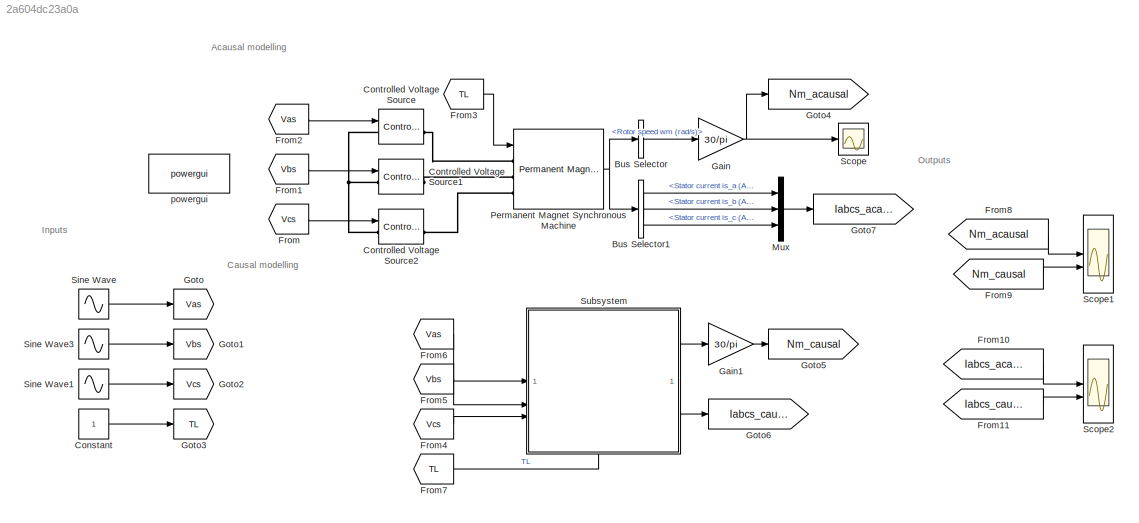
MODEL slx_2a604dc23a0a
KIND model
CONFIG AbsTol = auto
CONFIG EnableMultiTasking = off
CONFIG FixedStep = auto
CONFIG MaxStep = .0001
CONFIG MinStep = auto
CONFIG RelTol = 1e-3
CONFIG SampleTimeConstraint = Unconstrained
CONFIG SolverName = VariableStepAuto
CONFIG StartTime = 0.0
CONFIG StopTime = 10.0
BLOCK [BusSelector] Bus Selector
  OutputSignals = Rotor speed wm (rad/s)
BLOCK [BusSelector] Bus Selector1
  OutputSignals = Stator current is_a (A),Stator current is_b (A),Stator current is_c (A)
BLOCK [Constant] Constant
BLOCK [Reference] Controlled Voltage Source  REF=spsControlledVoltageSourceLib/Controlled Voltage Source
  LibrarySourceBlock = sps_lib/Sources/Controlled Voltage Source
  NameLocation = left
  SourceBlock = spsControlledVoltageSourceLib/Controlled Voltage Source
  SourceType = Controlled Voltage Source
BLOCK [Reference] Controlled Voltage Source1  REF=spsControlledVoltageSourceLib/Controlled Voltage Source
  LibrarySourceBlock = sps_lib/Sources/Controlled Voltage Source
  NameLocation = left
  SourceBlock = spsControlledVoltageSourceLib/Controlled Voltage Source
  SourceType = Controlled Voltage Source
BLOCK [Reference] Controlled Voltage Source2  REF=spsControlledVoltageSourceLib/Controlled Voltage Source
  LibrarySourceBlock = sps_lib/Sources/Controlled Voltage Source
  NameLocation = left
  SourceBlock = spsControlledVoltageSourceLib/Controlled Voltage Source
  SourceType = Controlled Voltage Source
BLOCK [From] From
  GotoTag = Vcs
BLOCK [From] From1
  GotoTag = Vbs
BLOCK [From] From10
  GotoTag = Iabcs_acausal
BLOCK [From] From11
  GotoTag = Iabcs_causal
BLOCK [From] From2
  GotoTag = Vas
BLOCK [From] From3
  GotoTag = TL
BLOCK [From] From4
  GotoTag = Vcs
BLOCK [From] From5
  GotoTag = Vbs
BLOCK [From] From6
  GotoTag = Vas
BLOCK [From] From7
  GotoTag = TL
BLOCK [From] From8
  GotoTag = Nm_acausal
BLOCK [From] From9
  GotoTag = Nm_causal
BLOCK [Gain] Gain
  Gain = 30/pi
BLOCK [Gain] Gain1
  Gain = 30/pi
BLOCK [Goto] Goto
  GotoTag = Vas
BLOCK [Goto] Goto1
  GotoTag = Vbs
BLOCK [Goto] Goto2
  GotoTag = Vcs
BLOCK [Goto] Goto3
  GotoTag = TL
BLOCK [Goto] Goto4
  GotoTag = Nm_acausal
BLOCK [Goto] Goto5
  GotoTag = Nm_causal
BLOCK [Goto] Goto6
  GotoTag = Iabcs_causal
BLOCK [Goto] Goto7
  GotoTag = Iabcs_acausal
BLOCK [Mux] Mux
  DisplayOption = bar
  Inputs = 3
BLOCK [Reference] Permanent Magnet Synchronous Machine  REF=spsPermanentMagnetSynchronousMachineLib/Permanent Magnet
Synchronous Machine
  LibrarySourceBlock = sps_lib/Electrical Machines/Permanent Magnet\nSynchronous Machine
  SourceBlock = spsPermanentMagnetSynchronousMachineLib/Permanent Magnet\nSynchronous Machine
  SourceType = Permanent Magnet Synchronous Machine
BLOCK [Scope] Scope
  Floating = off
  NumInputPorts = 1
  ScopeSpecificationString = Simulink.scopes.TimeScopeBlockCfg('CurrentConfiguration', extmgr.ConfigurationSet(extmgr.Configuration('Core','General UI',true),extmgr.Configuration('Core','Source UI',true),extmgr.Configuration('Sources','WiredSimulink',true),extmgr.Configuration('Visuals','Time Domain',true,'SerializedDisplays',{struct('MinYLimReal','1364.9907','MaxYLimReal','1870.87','YLabelReal','','MinYLimMag','1364.9907','M...<+1349ch>
BLOCK [Scope] Scope1
  Floating = off
  NumInputPorts = 2
  ScopeSpecificationString = Simulink.scopes.TimeScopeBlockCfg('CurrentConfiguration', extmgr.ConfigurationSet(extmgr.Configuration('Core','General UI',true),extmgr.Configuration('Core','Source UI',true),extmgr.Configuration('Sources','WiredSimulink',true,'DataLoggingVariableName','ScopeData1'),extmgr.Configuration('Visuals','Time Domain',true,'SerializedDisplays',{struct('MinYLimReal','-2594.11698','MaxYLimReal','4710.33482'...<+1541ch>
BLOCK [Scope] Scope2
  Floating = off
  NumInputPorts = 2
  ScopeSpecificationString = Simulink.scopes.TimeScopeBlockCfg('CurrentConfiguration', extmgr.ConfigurationSet(extmgr.Configuration('Core','General UI',true),extmgr.Configuration('Core','Source UI',true),extmgr.Configuration('Sources','WiredSimulink',true,'DataLoggingVariableName','ScopeData2'),extmgr.Configuration('Visuals','Time Domain',true,'SerializedDisplays',{struct('MinYLimReal','-8.72746','MaxYLimReal','8.72746','YLab...<+1836ch>
BLOCK [Sin] Sine Wave
  Amplitude = Vph_p
  Frequency = 2*pi*F
  SampleTime = 0
BLOCK [Sin] Sine Wave1
  Amplitude = Vph_p
  Frequency = 2*pi*F
  Phase = 2*pi/3
  SampleTime = 0
BLOCK [Sin] Sine Wave3
  Amplitude = Vph_p
  Frequency = 2*pi*F
  Phase = -2*pi/3
  SampleTime = 0
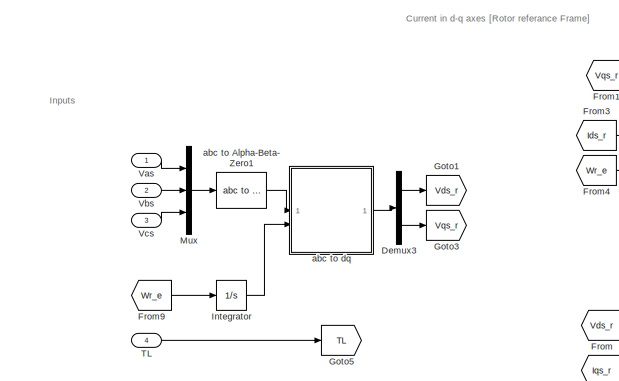
[diagram: Subsystem - part 1/2, middle left region]
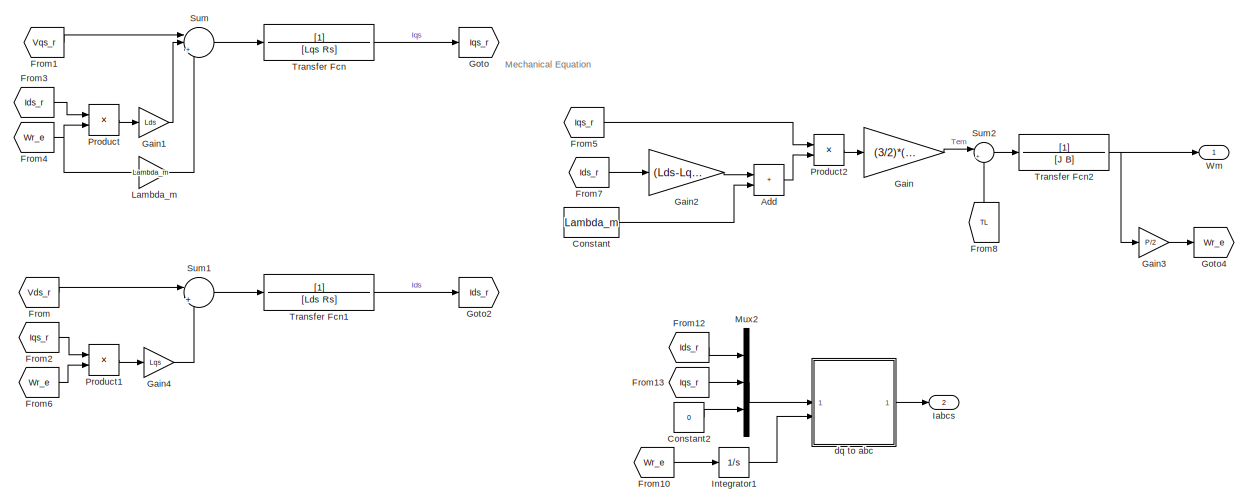
[diagram: Subsystem - part 2/2, center side, full height]
BLOCK [SubSystem] Subsystem
  PortSchema = {"entries":[{"content":{"sides":[{"content":{"connectorIds":["In1","In2","In3"]},"type":"ConnectorPlacement.EquallySpacedRectSide","uuid":"2d0cb5ef-c294-471d-8399-96b3c67f98e8"},{"content":{"connectorIds":["Out1","Out2"],"side":"RIGHT"},"type":"ConnectorPlacement.EquallySpacedRectSide","uuid":"760ac53b-deac-4a80-bd19-ac013c03b708"},{"content":{"side":"TOP"},"type":"ConnectorPlacement.EquallySpaced...<+390ch>
BLOCK [Sum] Subsystem/Add
  IconShape = rectangular
BLOCK [Constant] Subsystem/Constant
  Value = Lambda_m
BLOCK [Constant] Subsystem/Constant2
  Value = 0
BLOCK [Demux] Subsystem/Demux3
  Outputs = 2
BLOCK [From] Subsystem/From
  GotoTag = Vds_r
BLOCK [From] Subsystem/From1
  GotoTag = Vqs_r
BLOCK [From] Subsystem/From10
  GotoTag = Wr_e
BLOCK [From] Subsystem/From12
  GotoTag = Ids_r
BLOCK [From] Subsystem/From13
  GotoTag = Iqs_r
BLOCK [From] Subsystem/From2
  GotoTag = Iqs_r
BLOCK [From] Subsystem/From3
  GotoTag = Ids_r
BLOCK [From] Subsystem/From4
  GotoTag = Wr_e
BLOCK [From] Subsystem/From5
  GotoTag = Iqs_r
BLOCK [From] Subsystem/From6
  GotoTag = Wr_e
BLOCK [From] Subsystem/From7
  GotoTag = Ids_r
BLOCK [From] Subsystem/From8
  GotoTag = TL
  NameLocation = right
BLOCK [From] Subsystem/From9
  GotoTag = Wr_e
BLOCK [Gain] Subsystem/Gain
  Gain = (3/2)*(P/2)
BLOCK [Gain] Subsystem/Gain1
  Gain = Lds
BLOCK [Gain] Subsystem/Gain2
  Gain = (Lds-Lqs)
BLOCK [Gain] Subsystem/Gain3
  Gain = P/2
BLOCK [Gain] Subsystem/Gain4
  Gain = Lqs
BLOCK [Goto] Subsystem/Goto
  GotoTag = Iqs_r
BLOCK [Goto] Subsystem/Goto1
  GotoTag = Vds_r
BLOCK [Goto] Subsystem/Goto2
  GotoTag = Ids_r
BLOCK [Goto] Subsystem/Goto3
  GotoTag = Vqs_r
BLOCK [Goto] Subsystem/Goto4
  GotoTag = Wr_e
BLOCK [Goto] Subsystem/Goto5
  GotoTag = TL
BLOCK [Outport] Subsystem/Iabcs
  Port = 2
BLOCK [Integrator] Subsystem/Integrator
BLOCK [Integrator] Subsystem/Integrator1
BLOCK [Gain] Subsystem/Lambda_m
  Gain = Lambda_m
BLOCK [Mux] Subsystem/Mux
  DisplayOption = bar
  Inputs = 3
BLOCK [Mux] Subsystem/Mux2
  DisplayOption = bar
  Inputs = 3
BLOCK [Product] Subsystem/Product
BLOCK [Product] Subsystem/Product1
BLOCK [Product] Subsystem/Product2
BLOCK [Sum] Subsystem/Sum
  Inputs = ||+--
BLOCK [Sum] Subsystem/Sum1
  Inputs = ||+|+
BLOCK [Sum] Subsystem/Sum2
  Inputs = |+-
BLOCK [Inport] Subsystem/TL
  Port = 4
BLOCK [TransferFcn] Subsystem/Transfer Fcn
  Denominator = [Lqs Rs]
BLOCK [TransferFcn] Subsystem/Transfer Fcn1
  Denominator = [Lds Rs]
BLOCK [TransferFcn] Subsystem/Transfer Fcn2
  Denominator = [J B]
BLOCK [Inport] Subsystem/Vas
BLOCK [Inport] Subsystem/Vbs
  Port = 2
BLOCK [Inport] Subsystem/Vcs
  Port = 3
BLOCK [Outport] Subsystem/Wm
BLOCK [Reference] Subsystem/abc to Alpha-Beta-Zero1  REF=spsabctoAlphaBetaZeroLib/abc to
Alpha-Beta-Zero
  LibrarySourceBlock = sps_lib/Control/abc to\nAlpha-Beta-Zero
  SourceBlock = spsabctoAlphaBetaZeroLib/abc to\nAlpha-Beta-Zero
  SourceType = abc to Alpha-Beta-Zero Transformation
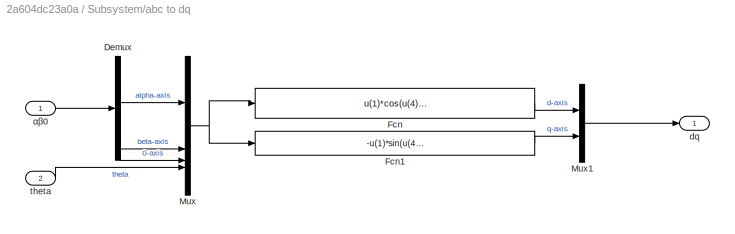
BLOCK [SubSystem] Subsystem/abc to dq
BLOCK [Demux] Subsystem/abc to dq/Demux
  Outputs = 3
BLOCK [Fcn] Subsystem/abc to dq/Fcn
  Expr = u(1)*cos(u(4))+u(2)*sin(u(4))
BLOCK [Fcn] Subsystem/abc to dq/Fcn1
  Expr = -u(1)*sin(u(4))+u(2)*cos(u(4))
BLOCK [Mux] Subsystem/abc to dq/Mux
  DisplayOption = bar
BLOCK [Mux] Subsystem/abc to dq/Mux1
  DisplayOption = bar
  Inputs = 2
BLOCK [Outport] Subsystem/abc to dq/dq
BLOCK [Inport] Subsystem/abc to dq/theta
  Port = 2
BLOCK [Inport] Subsystem/abc to dq/αβ0
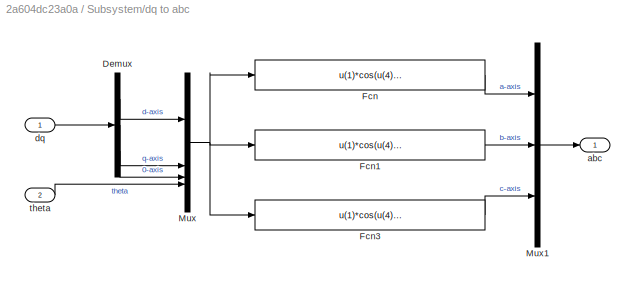
BLOCK [SubSystem] Subsystem/dq to abc
BLOCK [Demux] Subsystem/dq to abc/Demux
  Outputs = 3
BLOCK [Fcn] Subsystem/dq to abc/Fcn
  Expr = u(1)*cos(u(4))-u(2)*sin(u(4))+u(3)
BLOCK [Fcn] Subsystem/dq to abc/Fcn1
  Expr = u(1)*cos(u(4)-(2*pi/3))-u(2)*sin(u(4)-(2*pi/3))+u(3)
BLOCK [Fcn] Subsystem/dq to abc/Fcn3
  Expr = u(1)*cos(u(4)+(2*pi/3))-u(2)*sin(u(4)+(2*pi/3))+u(3)
BLOCK [Mux] Subsystem/dq to abc/Mux
  DisplayOption = bar
BLOCK [Mux] Subsystem/dq to abc/Mux1
  DisplayOption = bar
  Inputs = 3
BLOCK [Outport] Subsystem/dq to abc/abc
BLOCK [Inport] Subsystem/dq to abc/dq
BLOCK [Inport] Subsystem/dq to abc/theta
  Port = 2
BLOCK [Reference] powergui  REF=sps_lib/powergui
  Priority = 1
  SourceBlock = sps_lib/powergui
  SourceType = PSB option menu block
ANNOTATION (root): Acausal modelling
ANNOTATION (root): Causal modelling
ANNOTATION (root): Inputs
ANNOTATION (root): Outputs
ANNOTATION Subsystem: Mechanical Equation
ANNOTATION Subsystem: Inputs
ANNOTATION Subsystem: Current in d-q axes [Rotor referance Frame]
LINE Bus Selector1:1 -> Mux:1
LINE Bus Selector1:2 -> Mux:2
LINE Bus Selector1:3 -> Mux:3
LINE Bus Selector:1 -> Gain:1
LINE Constant:1 -> Goto3:1
LINE From10:1 -> Scope2:1
LINE From11:1 -> Scope2:2
LINE From1:1 -> Controlled Voltage Source1:1
LINE From2:1 -> Controlled Voltage Source:1
LINE From3:1 -> Permanent Magnet Synchronous Machine:1
LINE From4:1 -> Subsystem:3
LINE From5:1 -> Subsystem:2
LINE From6:1 -> Subsystem:1
LINE From7:1 -> Subsystem:4
LINE From8:1 -> Scope1:1
LINE From9:1 -> Scope1:2
LINE From:1 -> Controlled Voltage Source2:1
LINE Gain1:1 -> Goto5:1
NET Gain:1 -> Goto4:1, Scope:1
LINE Mux:1 -> Goto7:1
NET Permanent Magnet Synchronous Machine:1 -> Bus Selector1:1, Bus Selector:1
LINE Sine Wave1:1 -> Goto2:1
LINE Sine Wave3:1 -> Goto1:1
LINE Sine Wave:1 -> Goto:1
LINE Subsystem/Add:1 -> Subsystem/Product2:2
LINE Subsystem/Constant2:1 -> Subsystem/Mux2:3
LINE Subsystem/Constant:1 -> Subsystem/Add:2
LINE Subsystem/Demux3:1 -> Subsystem/Goto1:1
LINE Subsystem/Demux3:2 -> Subsystem/Goto3:1
LINE Subsystem/From10:1 -> Subsystem/Integrator1:1
LINE Subsystem/From12:1 -> Subsystem/Mux2:1
LINE Subsystem/From13:1 -> Subsystem/Mux2:2
LINE Subsystem/From1:1 -> Subsystem/Sum:1
LINE Subsystem/From2:1 -> Subsystem/Product1:1
LINE Subsystem/From3:1 -> Subsystem/Product:1
NET Subsystem/From4:1 -> Subsystem/Lambda_m:1, Subsystem/Product:2
LINE Subsystem/From5:1 -> Subsystem/Product2:1
LINE Subsystem/From6:1 -> Subsystem/Product1:2
LINE Subsystem/From7:1 -> Subsystem/Gain2:1
LINE Subsystem/From8:1 -> Subsystem/Sum2:2
LINE Subsystem/From9:1 -> Subsystem/Integrator:1
LINE Subsystem/From:1 -> Subsystem/Sum1:1
LINE Subsystem/Gain1:1 -> Subsystem/Sum:2
LINE Subsystem/Gain2:1 -> Subsystem/Add:1
LINE Subsystem/Gain3:1 -> Subsystem/Goto4:1
LINE Subsystem/Gain4:1 -> Subsystem/Sum1:2
LINE Subsystem/Gain:1 -> Subsystem/Sum2:1
LINE Subsystem/Integrator1:1 -> Subsystem/dq to abc:2
LINE Subsystem/Integrator:1 -> Subsystem/abc to dq:2
LINE Subsystem/Lambda_m:1 -> Subsystem/Sum:3
LINE Subsystem/Mux2:1 -> Subsystem/dq to abc:1
LINE Subsystem/Mux:1 -> Subsystem/abc to Alpha-Beta-Zero1:1
LINE Subsystem/Product1:1 -> Subsystem/Gain4:1
LINE Subsystem/Product2:1 -> Subsystem/Gain:1
LINE Subsystem/Product:1 -> Subsystem/Gain1:1
LINE Subsystem/Sum1:1 -> Subsystem/Transfer Fcn1:1
LINE Subsystem/Sum2:1 -> Subsystem/Transfer Fcn2:1
LINE Subsystem/Sum:1 -> Subsystem/Transfer Fcn:1
LINE Subsystem/TL:1 -> Subsystem/Goto5:1
LINE Subsystem/Transfer Fcn1:1 -> Subsystem/Goto2:1
NET Subsystem/Transfer Fcn2:1 -> Subsystem/Gain3:1, Subsystem/Wm:1
LINE Subsystem/Transfer Fcn:1 -> Subsystem/Goto:1
LINE Subsystem/Vas:1 -> Subsystem/Mux:1
LINE Subsystem/Vbs:1 -> Subsystem/Mux:2
LINE Subsystem/Vcs:1 -> Subsystem/Mux:3
LINE Subsystem/abc to Alpha-Beta-Zero1:1 -> Subsystem/abc to dq:1
LINE Subsystem/abc to dq/Demux:1 -> Subsystem/abc to dq/Mux:1
LINE Subsystem/abc to dq/Demux:2 -> Subsystem/abc to dq/Mux:2
LINE Subsystem/abc to dq/Demux:3 -> Subsystem/abc to dq/Mux:3
LINE Subsystem/abc to dq/Fcn1:1 -> Subsystem/abc to dq/Mux1:2
LINE Subsystem/abc to dq/Fcn:1 -> Subsystem/abc to dq/Mux1:1
LINE Subsystem/abc to dq/Mux1:1 -> Subsystem/abc to dq/dq:1
NET Subsystem/abc to dq/Mux:1 -> Subsystem/abc to dq/Fcn1:1, Subsystem/abc to dq/Fcn:1
LINE Subsystem/abc to dq/theta:1 -> Subsystem/abc to dq/Mux:4
LINE Subsystem/abc to dq/αβ0:1 -> Subsystem/abc to dq/Demux:1
LINE Subsystem/abc to dq:1 -> Subsystem/Demux3:1
LINE Subsystem/dq to abc/Demux:1 -> Subsystem/dq to abc/Mux:1
LINE Subsystem/dq to abc/Demux:2 -> Subsystem/dq to abc/Mux:2
LINE Subsystem/dq to abc/Demux:3 -> Subsystem/dq to abc/Mux:3
LINE Subsystem/dq to abc/Fcn1:1 -> Subsystem/dq to abc/Mux1:2
LINE Subsystem/dq to abc/Fcn3:1 -> Subsystem/dq to abc/Mux1:3
LINE Subsystem/dq to abc/Fcn:1 -> Subsystem/dq to abc/Mux1:1
LINE Subsystem/dq to abc/Mux1:1 -> Subsystem/dq to abc/abc:1
NET Subsystem/dq to abc/Mux:1 -> Subsystem/dq to abc/Fcn1:1, Subsystem/dq to abc/Fcn3:1, Subsystem/dq to abc/Fcn:1
LINE Subsystem/dq to abc/dq:1 -> Subsystem/dq to abc/Demux:1
LINE Subsystem/dq to abc/theta:1 -> Subsystem/dq to abc/Mux:4
LINE Subsystem/dq to abc:1 -> Subsystem/Iabcs:1
LINE Subsystem:1 -> Gain1:1
LINE Subsystem:2 -> Goto6:1
PNET net1: Controlled Voltage Source1:LConn1 -- Controlled Voltage Source2:LConn1 -- Controlled Voltage Source:LConn1
PLINE Controlled Voltage Source1:RConn1 -- Permanent Magnet Synchronous Machine:LConn2
PLINE Controlled Voltage Source2:RConn1 -- Permanent Magnet Synchronous Machine:LConn3
PLINE Controlled Voltage Source:RConn1 -- Permanent Magnet Synchronous Machine:LConn1
note: NET lines group one-source signal fan-out (src -> all destinations, sorted); 1:1 wires keep LINE; PNET lines group multi-terminal physical nets as a canonical sorted terminal list (undirected conserving connections); 2-terminal nets keep the pairwise PLINE form
